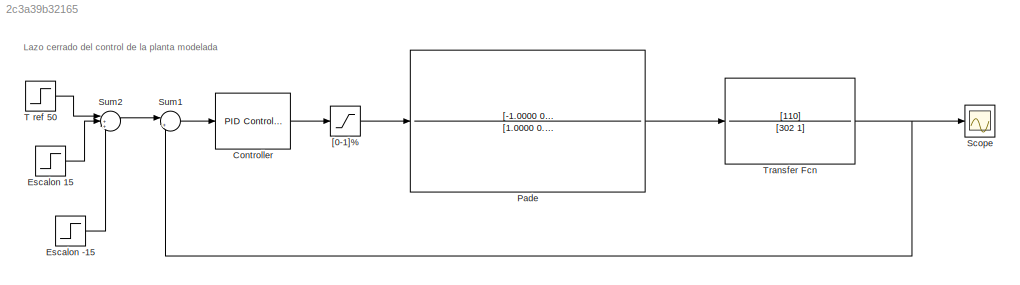
MODEL slx_2c3a39b32165
KIND model
CONFIG AbsTol = auto
CONFIG EnableMultiTasking = off
CONFIG FixedStep = auto
CONFIG MaxStep = auto
CONFIG MinStep = auto
CONFIG RelTol = 1e-3
CONFIG SampleTimeConstraint = Unconstrained
CONFIG Solver = VariableStepAuto
CONFIG SolverName = VariableStepAuto
CONFIG StartTime = 0.0
CONFIG StopTime = 1500
BLOCK [Reference]  Controller  REF=simulink/Continuous/PID Controller
  Ports = [1, 1]
  SourceBlock = simulink/Continuous/PID Controller
  SourceProductBaseCode = SL
  SourceProductName = Simulink
  SourceType = PID 1dof
BLOCK [Step] Escalon -15
  After = 15
  SampleTime = 0
  Time = 1000
BLOCK [Step] Escalon 15
  After = 15
  SampleTime = 0
  Time = 500
BLOCK [TransferFcn] Pade
  Denominator = [1.0000    0.5000    0.1042    0.0087]
  Numerator = [-1.0000    0.5000    -0.1042    0.0087]
BLOCK [Scope] Scope
  NumInputPorts = 1
  Ports = [1]
  ScopeSpecificationString = Simulink.scopes.TimeScopeBlockCfg('CurrentConfiguration', extmgr.ConfigurationSet(extmgr.Configuration('Core','General UI',true,'FigureColor',[1 1 1]),extmgr.Configuration('Core','Source UI',true),extmgr.Configuration('Sources','WiredSimulink',true),extmgr.Configuration('Visuals','Time Domain',true,'SerializedDisplays',{struct('MinYLimReal','0','MaxYLimReal','70','YLabelReal','Temperatura','MinYLi...<+1547ch>
BLOCK [Sum] Sum1
  IconShape = round
  InputSameDT = off
  Inputs = |+-
  OutDataTypeStr = Inherit: Inherit via internal rule
  Ports = [2, 1]
  SaturateOnIntegerOverflow = off
BLOCK [Sum] Sum2
  IconShape = round
  InputSameDT = off
  Inputs = |++-
  OutDataTypeStr = Inherit: Inherit via internal rule
  Ports = [3, 1]
  SaturateOnIntegerOverflow = off
BLOCK [Step] T ref 50
  After = 50
  SampleTime = 0
  Time = 0
BLOCK [TransferFcn] Transfer Fcn
  Denominator = [302 1]
  Numerator = [110]
BLOCK [Saturate] [0-1]%
  InputPortMap = u0
  LowerLimit = 0
  Ports = [1, 1]
  UpperLimit = 1
ANNOTATION (root): Lazo cerrado del control de la planta modelada
LINE  Controller:1 -> [0-1]%:1
LINE Escalon -15:1 -> Sum2:3
LINE Escalon 15:1 -> Sum2:2
LINE Pade:1 -> Transfer Fcn:1
LINE Sum1:1 ->  Controller:1
LINE Sum2:1 -> Sum1:1
LINE T ref 50:1 -> Sum2:1
NET Transfer Fcn:1 -> Scope:1, Sum1:2
LINE [0-1]%:1 -> Pade:1
note: NET lines group one-source signal fan-out (src -> all destinations, sorted); 1:1 wires keep LINE
